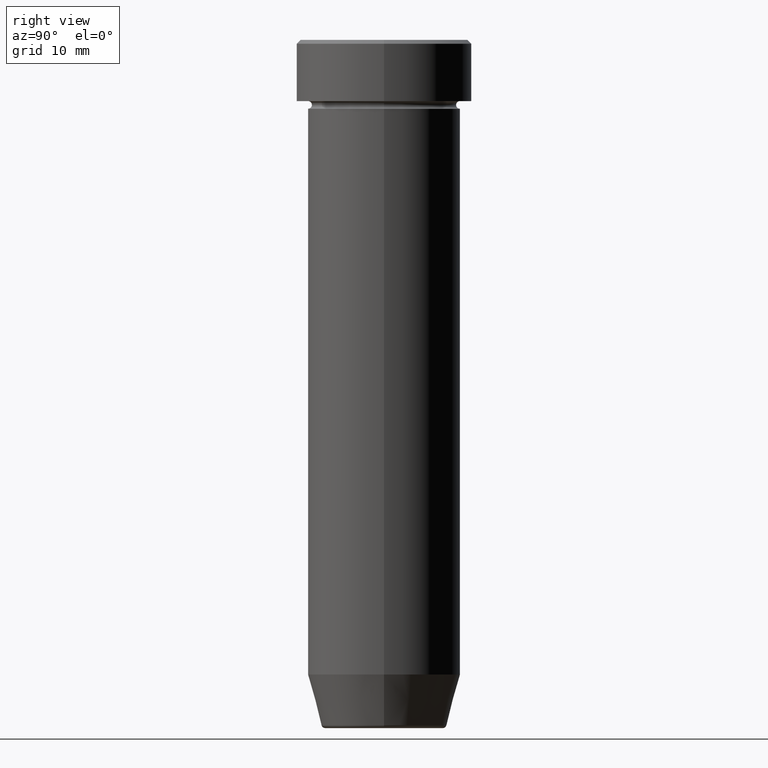
[diagram: clean part render]
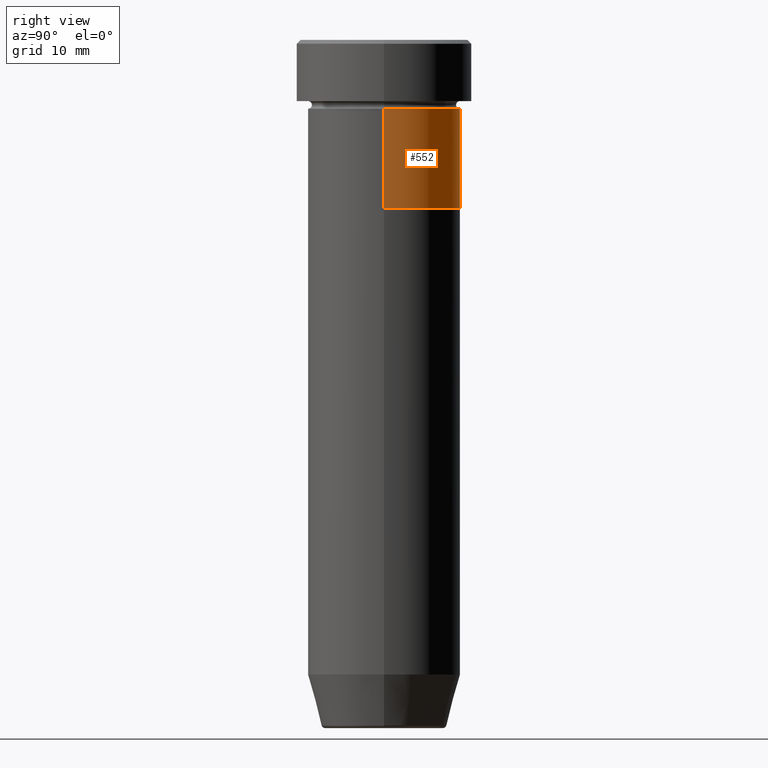
[diagram: same view with one face highlighted and labeled with its STEP entity id]
A machine part, right view. The second image highlights one B-rep face of the part: STEP entity #552.
In plain terms, the highlighted cylindrical surface (partial cylindrical patch) has radius 10 mm, axis along (-0, -0, 1).
Its self-contained STEP definition (entity closure, byte-faithful):
#5 = ORIENTED_EDGE ( 'NONE', *, *, #25, .T. ) ;
#25 = EDGE_CURVE ( 'NONE', #370, #295, #159, .T. ) ;
#55 = VERTEX_POINT ( 'NONE', #534 ) ;
#71 = AXIS2_PLACEMENT_3D ( 'NONE', #410, #495, #577 ) ;
#87 = VECTOR ( 'NONE', #357, 1000.000000000000000 ) ;
#105 = DIRECTION ( 'NONE',  ( -0.000000000000000000, -0.000000000000000000, 1.000000000000000000 ) ) ;
#108 = CARTESIAN_POINT ( 'NONE',  ( 0.000000000000000000, 0.000000000000000000, -22.00000000000000000 ) ) ;
#119 = AXIS2_PLACEMENT_3D ( 'NONE', #108, #105, #465 ) ;
#133 = DIRECTION ( 'NONE',  ( -0.000000000000000000, -0.000000000000000000, 1.000000000000000000 ) ) ;
#153 = CARTESIAN_POINT ( 'NONE',  ( 10.00000000000000000, 0.000000000000000000, -9.000000000000001776 ) ) ;
#158 = FACE_OUTER_BOUND ( 'NONE', #433, .T. ) ;
#159 = LINE ( 'NONE', #584, #87 ) ;
#229 = ORIENTED_EDGE ( 'NONE', *, *, #441, .T. ) ;
#237 = EDGE_CURVE ( 'NONE', #55, #383, #418, .T. ) ;
#250 = CARTESIAN_POINT ( 'NONE',  ( 0.000000000000000000, 0.000000000000000000, -9.000000000000001776 ) ) ;
#279 = AXIS2_PLACEMENT_3D ( 'NONE', #250, #593, #438 ) ;
#295 = VERTEX_POINT ( 'NONE', #411 ) ;
#315 = CIRCLE ( 'NONE', #119, 10.00000000000000000 ) ;
#345 = CARTESIAN_POINT ( 'NONE',  ( -10.00000000000000000, 1.224646799147353256E-15, -22.00000000000000000 ) ) ;
#347 = CYLINDRICAL_SURFACE ( 'NONE', #71, 10.00000000000000000 ) ;
#349 = VECTOR ( 'NONE', #133, 1000.000000000000000 ) ;
#357 = DIRECTION ( 'NONE',  ( -0.000000000000000000, -0.000000000000000000, 1.000000000000000000 ) ) ;
#370 = VERTEX_POINT ( 'NONE', #345 ) ;
#380 = ORIENTED_EDGE ( 'NONE', *, *, #237, .F. ) ;
#383 = VERTEX_POINT ( 'NONE', #153 ) ;
#408 = ORIENTED_EDGE ( 'NONE', *, *, #530, .F. ) ;
#410 = CARTESIAN_POINT ( 'NONE',  ( 0.000000000000000000, 0.000000000000000000, 0.000000000000000000 ) ) ;
#411 = CARTESIAN_POINT ( 'NONE',  ( -10.00000000000000000, 1.224646799147353256E-15, -9.000000000000001776 ) ) ;
#418 = LINE ( 'NONE', #594, #349 ) ;
#433 = EDGE_LOOP ( 'NONE', ( #229, #5, #408, #380 ) ) ;
#438 = DIRECTION ( 'NONE',  ( 1.000000000000000000, 0.000000000000000000, 0.000000000000000000 ) ) ;
#441 = EDGE_CURVE ( 'NONE', #55, #370, #315, .T. ) ;
#465 = DIRECTION ( 'NONE',  ( 1.000000000000000000, 0.000000000000000000, 0.000000000000000000 ) ) ;
#483 = CIRCLE ( 'NONE', #279, 10.00000000000000000 ) ;
#495 = DIRECTION ( 'NONE',  ( -0.000000000000000000, -0.000000000000000000, 1.000000000000000000 ) ) ;
#530 = EDGE_CURVE ( 'NONE', #383, #295, #483, .T. ) ;
#534 = CARTESIAN_POINT ( 'NONE',  ( 10.00000000000000000, 0.000000000000000000, -22.00000000000000000 ) ) ;
#552 = ADVANCED_FACE ( 'NONE', ( #158 ), #347, .T. ) ;
#577 = DIRECTION ( 'NONE',  ( 1.000000000000000000, 0.000000000000000000, 0.000000000000000000 ) ) ;
#584 = CARTESIAN_POINT ( 'NONE',  ( -10.00000000000000000, 1.224646799147353256E-15, 0.000000000000000000 ) ) ;
#593 = DIRECTION ( 'NONE',  ( -0.000000000000000000, -0.000000000000000000, 1.000000000000000000 ) ) ;
#594 = CARTESIAN_POINT ( 'NONE',  ( 10.00000000000000000, 0.000000000000000000, 0.000000000000000000 ) ) ;